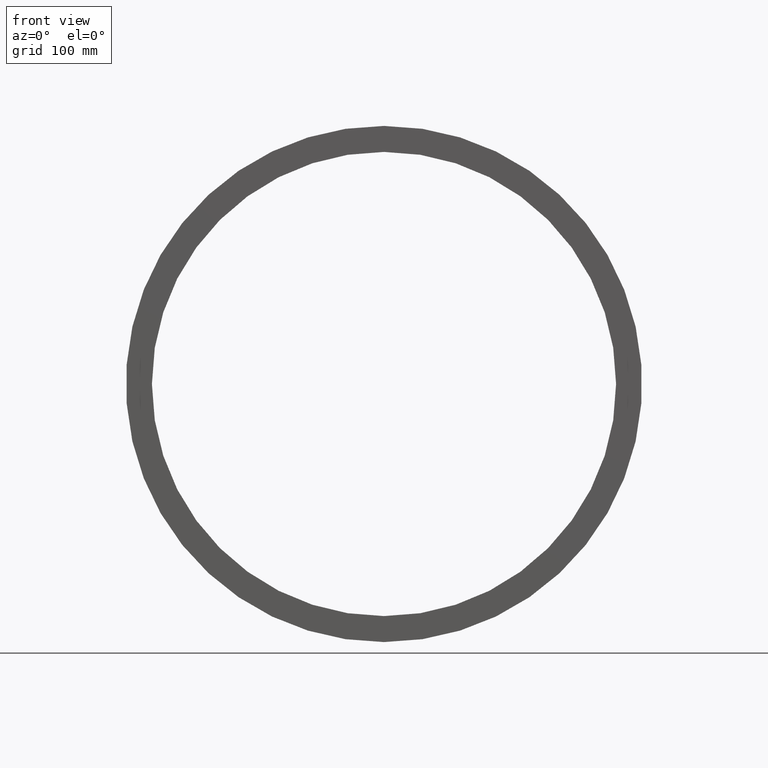
[diagram: clean part render]
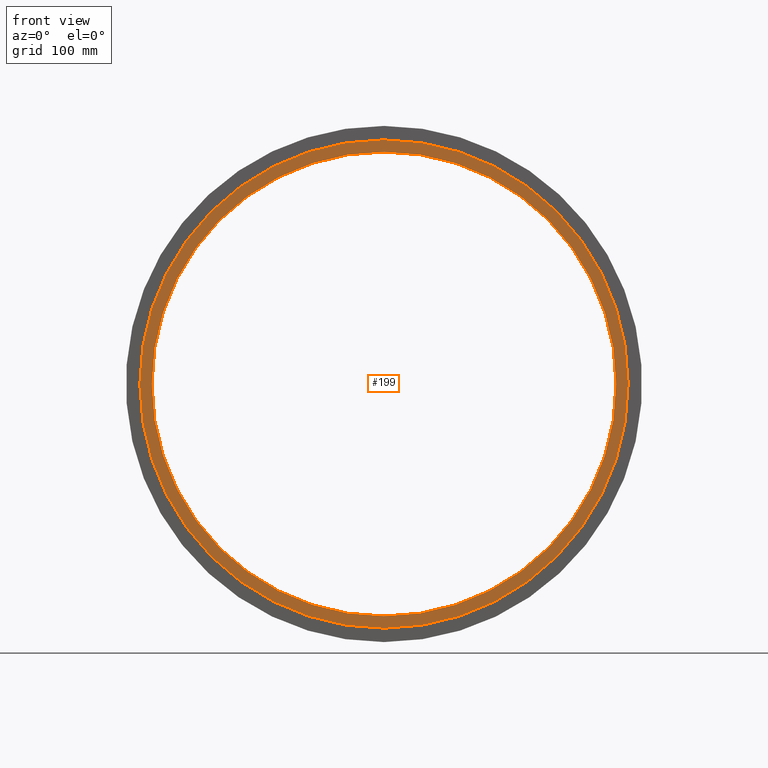
[diagram: same view with one face highlighted and labeled with its STEP entity id]
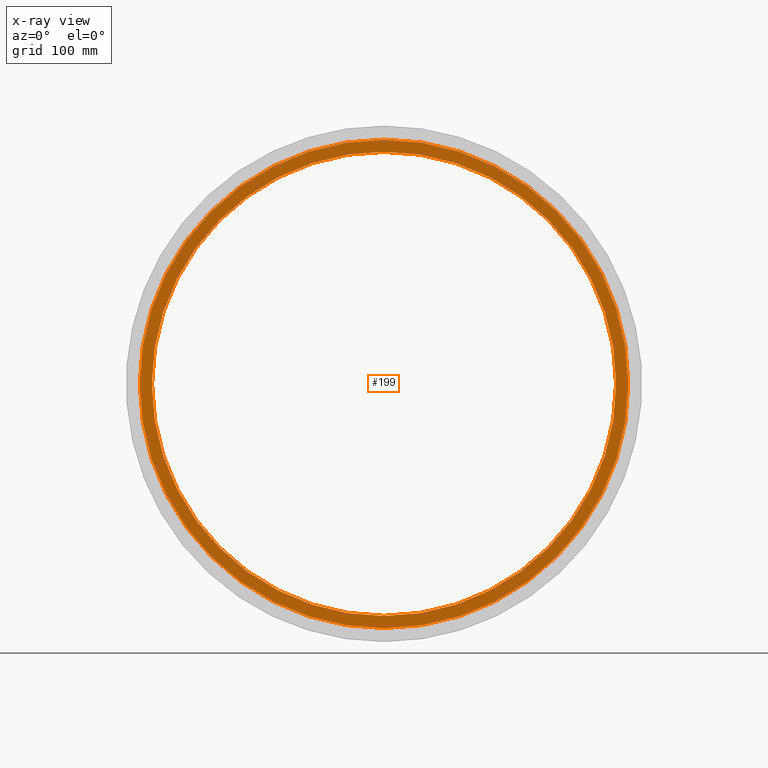
[diagram: x-ray of the same camera — body ghosted, the highlighted face saturated]
A machine part, front view. The second image highlights one B-rep face of the part: STEP entity #199.
The next image is the same camera in x-ray: the body ghosted, the highlighted face saturated — about 0% of this face is hidden behind the body in this view.
In plain terms, the highlighted planar face has unit normal (0, 1, 0).
Its self-contained STEP definition (entity closure, byte-faithful):
#10 = EDGE_LOOP ( 'NONE', ( #458, #101 ) ) ;
#13 = DIRECTION ( 'NONE',  ( 0.0000000000000000000, 1.000000000000000000, 0.0000000000000000000 ) ) ;
#17 = CIRCLE ( 'NONE', #515, 263.0000000000000568 ) ;
#24 = VERTEX_POINT ( 'NONE', #175 ) ;
#47 = CARTESIAN_POINT ( 'NONE',  ( 0.0000000000000000000, -50.00000000000000000, 0.0000000000000000000 ) ) ;
#51 = EDGE_CURVE ( 'NONE', #284, #258, #17, .T. ) ;
#54 = ORIENTED_EDGE ( 'NONE', *, *, #445, .F. ) ;
#57 = DIRECTION ( 'NONE',  ( 0.0000000000000000000, 0.0000000000000000000, 1.000000000000000000 ) ) ;
#84 = CARTESIAN_POINT ( 'NONE',  ( 3.220821081757540076E-14, -50.00000000000000000, -263.0000000000000568 ) ) ;
#100 = DIRECTION ( 'NONE',  ( 0.0000000000000000000, 1.000000000000000000, 0.0000000000000000000 ) ) ;
#101 = ORIENTED_EDGE ( 'NONE', *, *, #261, .T. ) ;
#126 = DIRECTION ( 'NONE',  ( 0.0000000000000000000, 1.000000000000000000, 0.0000000000000000000 ) ) ;
#138 = FACE_OUTER_BOUND ( 'NONE', #412, .T. ) ;
#142 = CARTESIAN_POINT ( 'NONE',  ( 3.061616997868383121E-14, -50.00000000000000000, -250.0000000000000000 ) ) ;
#157 = CIRCLE ( 'NONE', #326, 250.0000000000000000 ) ;
#175 = CARTESIAN_POINT ( 'NONE',  ( 0.0000000000000000000, -50.00000000000000000, 250.0000000000000000 ) ) ;
#182 = PLANE ( 'NONE',  #503 ) ;
#185 = DIRECTION ( 'NONE',  ( 0.0000000000000000000, 0.0000000000000000000, 1.000000000000000000 ) ) ;
#186 = CARTESIAN_POINT ( 'NONE',  ( 0.0000000000000000000, -50.00000000000000000, 0.0000000000000000000 ) ) ;
#189 = DIRECTION ( 'NONE',  ( 0.0000000000000000000, 1.000000000000000000, 0.0000000000000000000 ) ) ;
#199 = ADVANCED_FACE ( 'NONE', ( #446, #138 ), #182, .F. ) ;
#224 = DIRECTION ( 'NONE',  ( 0.0000000000000000000, -0.0000000000000000000, 1.000000000000000000 ) ) ;
#237 = AXIS2_PLACEMENT_3D ( 'NONE', #186, #100, #517 ) ;
#258 = VERTEX_POINT ( 'NONE', #84 ) ;
#261 = EDGE_CURVE ( 'NONE', #331, #24, #548, .T. ) ;
#281 = CARTESIAN_POINT ( 'NONE',  ( 0.0000000000000000000, -50.00000000000000000, 0.0000000000000000000 ) ) ;
#284 = VERTEX_POINT ( 'NONE', #406 ) ;
#314 = DIRECTION ( 'NONE',  ( 0.0000000000000000000, 0.0000000000000000000, 1.000000000000000000 ) ) ;
#326 = AXIS2_PLACEMENT_3D ( 'NONE', #281, #189, #57 ) ;
#331 = VERTEX_POINT ( 'NONE', #142 ) ;
#361 = ORIENTED_EDGE ( 'NONE', *, *, #51, .F. ) ;
#371 = DIRECTION ( 'NONE',  ( 0.0000000000000000000, 1.000000000000000000, 0.0000000000000000000 ) ) ;
#375 = CARTESIAN_POINT ( 'NONE',  ( 0.0000000000000000000, -50.00000000000000000, 0.0000000000000000000 ) ) ;
#406 = CARTESIAN_POINT ( 'NONE',  ( 0.0000000000000000000, -50.00000000000000000, 263.0000000000000568 ) ) ;
#412 = EDGE_LOOP ( 'NONE', ( #361, #54 ) ) ;
#441 = EDGE_CURVE ( 'NONE', #24, #331, #157, .T. ) ;
#445 = EDGE_CURVE ( 'NONE', #258, #284, #475, .T. ) ;
#446 = FACE_BOUND ( 'NONE', #10, .T. ) ;
#458 = ORIENTED_EDGE ( 'NONE', *, *, #441, .T. ) ;
#475 = CIRCLE ( 'NONE', #504, 263.0000000000000568 ) ;
#483 = CARTESIAN_POINT ( 'NONE',  ( 0.0000000000000000000, -50.00000000000000000, 0.0000000000000000000 ) ) ;
#503 = AXIS2_PLACEMENT_3D ( 'NONE', #47, #371, #224 ) ;
#504 = AXIS2_PLACEMENT_3D ( 'NONE', #375, #13, #185 ) ;
#515 = AXIS2_PLACEMENT_3D ( 'NONE', #483, #126, #314 ) ;
#517 = DIRECTION ( 'NONE',  ( 0.0000000000000000000, 0.0000000000000000000, 1.000000000000000000 ) ) ;
#548 = CIRCLE ( 'NONE', #237, 250.0000000000000000 ) ;